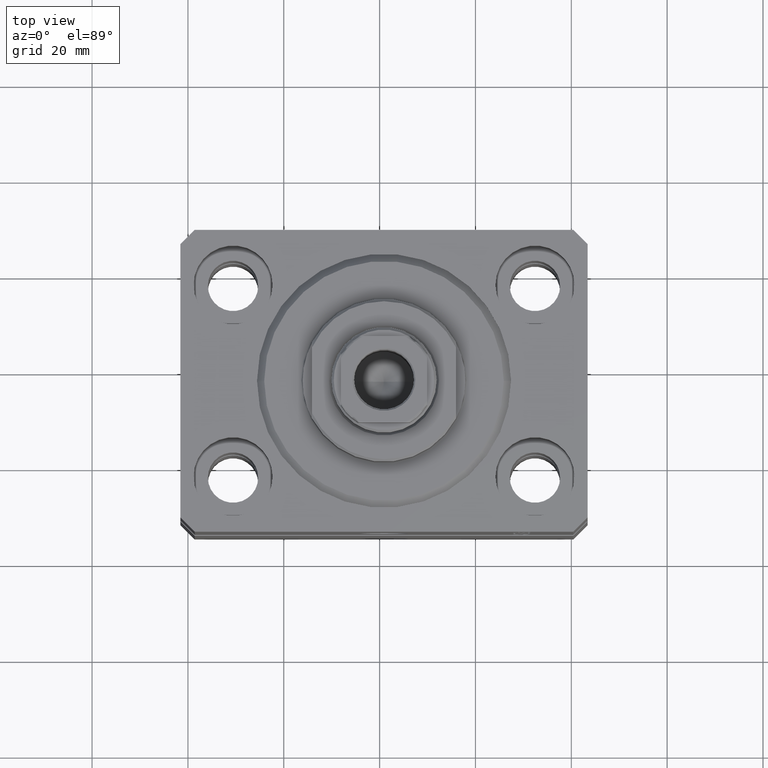
[diagram: clean part render]
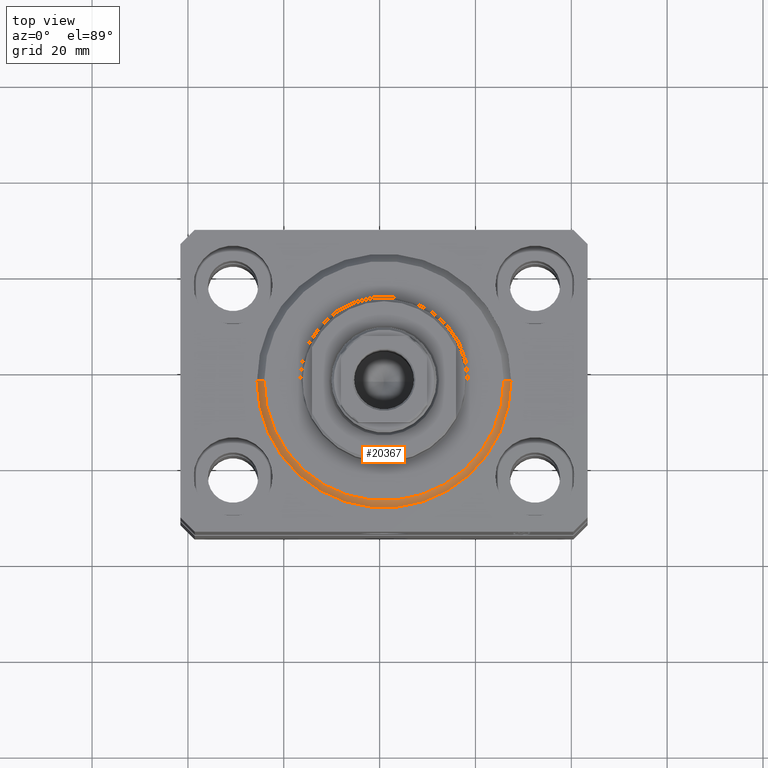
[diagram: same view with one face highlighted and labeled with its STEP entity id]
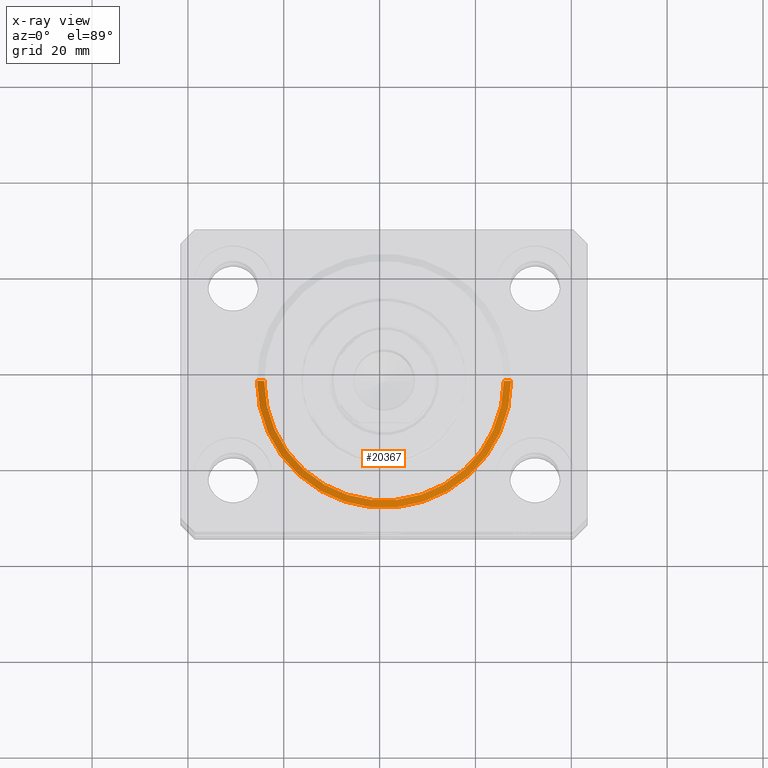
[diagram: x-ray of the same camera — body ghosted, the highlighted face saturated]
A machine part, top view. The second image highlights one B-rep face of the part: STEP entity #20367.
The next image is the same camera in x-ray: the body ghosted, the highlighted face saturated — about 0% of this face is hidden behind the body in this view.
In plain terms, the highlighted conical surface has half-angle 45 deg.
Its self-contained STEP definition (entity closure, byte-faithful):
#252 = VERTEX_POINT ( 'NONE', #40233 ) ;
#2264 = EDGE_CURVE ( 'NONE', #37438, #32334, #34283, .T. ) ;
#3115 = LINE ( 'NONE', #3571, #41867 ) ;
#3237 = EDGE_CURVE ( 'NONE', #28616, #37438, #8440, .T. ) ;
#3571 = CARTESIAN_POINT ( 'NONE',  ( 26.50000000000000355, 0.000000000000000000, 1.500000000000018652 ) ) ;
#4669 = CARTESIAN_POINT ( 'NONE',  ( 26.50000000000000355, 3.245314017740486554E-15, 1.500000000000018652 ) ) ;
#5016 = ORIENTED_EDGE ( 'NONE', *, *, #2264, .F. ) ;
#5305 = DIRECTION ( 'NONE',  ( 1.000000000000000000, 0.000000000000000000, 0.000000000000000000 ) ) ;
#5483 = DIRECTION ( 'NONE',  ( -0.7071067811865483499, 8.659560562354942719E-17, 0.7071067811865466846 ) ) ;
#5887 = AXIS2_PLACEMENT_3D ( 'NONE', #20803, #27387, #34882 ) ;
#7060 = DIRECTION ( 'NONE',  ( -0.000000000000000000, -0.000000000000000000, 1.000000000000000000 ) ) ;
#8329 = ORIENTED_EDGE ( 'NONE', *, *, #3237, .F. ) ;
#8417 = ORIENTED_EDGE ( 'NONE', *, *, #34235, .F. ) ;
#8440 = LINE ( 'NONE', #42008, #39363 ) ;
#9017 = EDGE_LOOP ( 'NONE', ( #8329, #8417, #40405, #5016 ) ) ;
#9654 = CARTESIAN_POINT ( 'NONE',  ( -24.99999999999998224, 3.153465507804433615E-15, 0.000000000000000000 ) ) ;
#16611 = FACE_OUTER_BOUND ( 'NONE', #9017, .T. ) ;
#20367 = ADVANCED_FACE ( 'NONE', ( #16611 ), #42482, .T. ) ;
#20803 = CARTESIAN_POINT ( 'NONE',  ( 0.000000000000000000, 0.000000000000000000, 0.000000000000000000 ) ) ;
#22938 = AXIS2_PLACEMENT_3D ( 'NONE', #30463, #44285, #5305 ) ;
#23418 = AXIS2_PLACEMENT_3D ( 'NONE', #38118, #7060, #34726 ) ;
#26833 = EDGE_CURVE ( 'NONE', #252, #32334, #3115, .T. ) ;
#27387 = DIRECTION ( 'NONE',  ( -0.000000000000000000, -0.000000000000000000, -1.000000000000000000 ) ) ;
#28311 = CIRCLE ( 'NONE', #5887, 24.99999999999998224 ) ;
#28616 = VERTEX_POINT ( 'NONE', #9654 ) ;
#30463 = CARTESIAN_POINT ( 'NONE',  ( 0.000000000000000000, 0.000000000000000000, 1.500000000000018652 ) ) ;
#32334 = VERTEX_POINT ( 'NONE', #4669 ) ;
#34235 = EDGE_CURVE ( 'NONE', #252, #28616, #28311, .T. ) ;
#34283 = CIRCLE ( 'NONE', #23418, 26.50000000000000355 ) ;
#34726 = DIRECTION ( 'NONE',  ( 1.000000000000000000, 0.000000000000000000, 0.000000000000000000 ) ) ;
#34882 = DIRECTION ( 'NONE',  ( 1.000000000000000000, 0.000000000000000000, 0.000000000000000000 ) ) ;
#37362 = DIRECTION ( 'NONE',  ( 0.7071067811865483499, 0.000000000000000000, 0.7071067811865466846 ) ) ;
#37438 = VERTEX_POINT ( 'NONE', #37661 ) ;
#37661 = CARTESIAN_POINT ( 'NONE',  ( -26.50000000000000355, 0.000000000000000000, 1.500000000000018652 ) ) ;
#38118 = CARTESIAN_POINT ( 'NONE',  ( 0.000000000000000000, 0.000000000000000000, 1.500000000000018652 ) ) ;
#39363 = VECTOR ( 'NONE', #5483, 1000.000000000000000 ) ;
#40233 = CARTESIAN_POINT ( 'NONE',  ( 24.99999999999998224, 0.000000000000000000, 0.000000000000000000 ) ) ;
#40405 = ORIENTED_EDGE ( 'NONE', *, *, #26833, .T. ) ;
#41867 = VECTOR ( 'NONE', #37362, 1000.000000000000000 ) ;
#42008 = CARTESIAN_POINT ( 'NONE',  ( -26.50000000000000355, 3.245314017740486554E-15, 1.500000000000018652 ) ) ;
#42482 = CONICAL_SURFACE ( 'NONE', #22938, 26.50000000000000355, 0.7853981633974495002 ) ;
#44285 = DIRECTION ( 'NONE',  ( -0.000000000000000000, -0.000000000000000000, 1.000000000000000000 ) ) ;